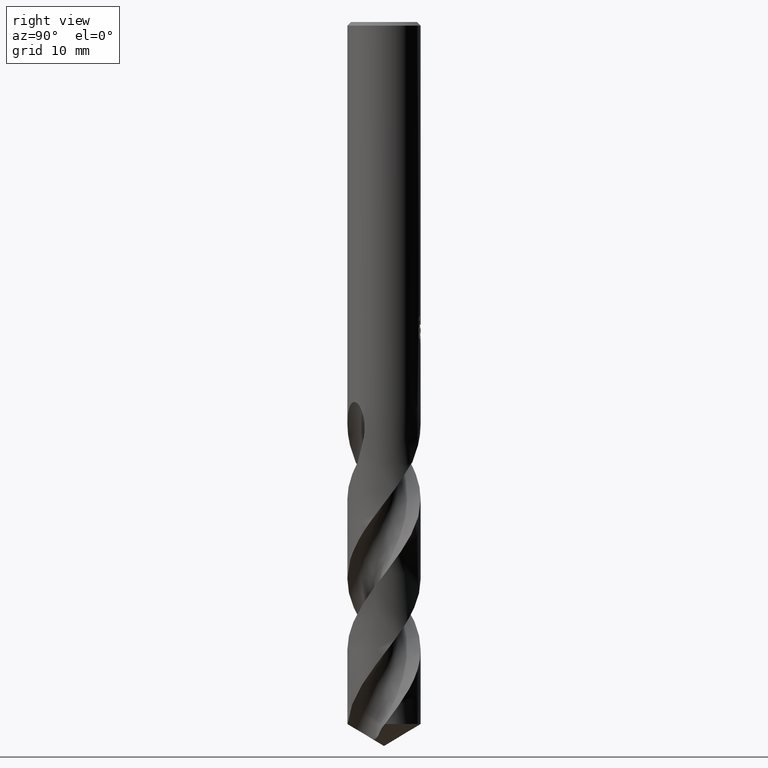
[diagram: clean part render]
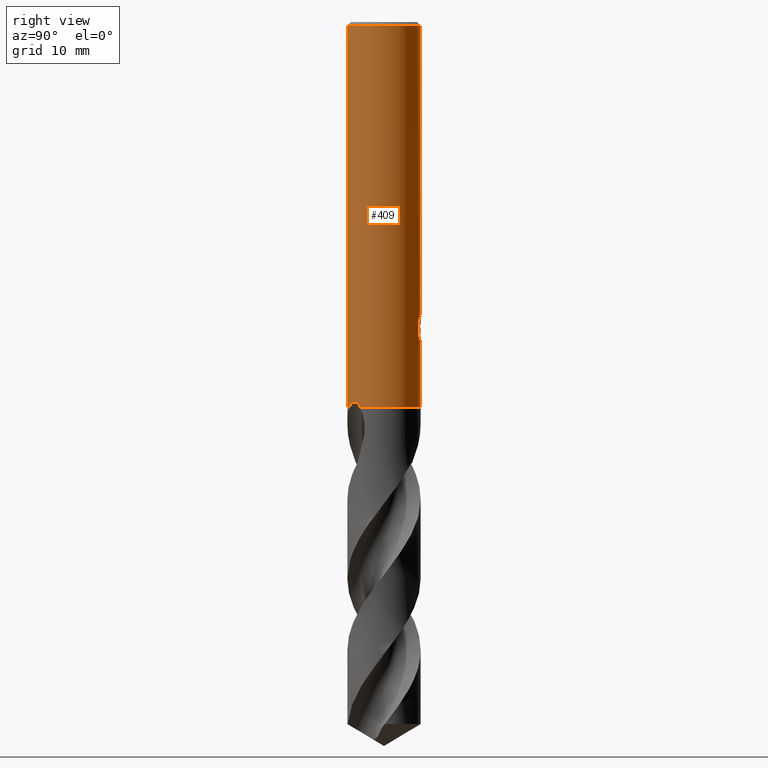
[diagram: same view with one face highlighted and labeled with its STEP entity id]
A machine part, right view. The second image highlights one B-rep face of the part: STEP entity #409.
In plain terms, the highlighted cylindrical surface (partial cylindrical patch) has radius 4 mm, axis along (-0, -0, 1).
Its self-contained STEP definition (entity closure, byte-faithful):
#251=EDGE_CURVE('',#639,#339,#718,.T.);
#271=EDGE_CURVE('',#605,#391,#740,.T.);
#277=VERTEX_POINT('',#746);
#283=EDGE_CURVE('',#391,#643,#752,.T.);
#303=VERTEX_POINT('',#775);
#307=VERTEX_POINT('',#779);
#327=VERTEX_POINT('',#802);
#339=VERTEX_POINT('',#815);
#391=VERTEX_POINT('',#873);
#401=EDGE_CURVE('',#605,#307,#885,.T.);
#409=ADVANCED_FACE('',(#894),#895,.T.);
#435=EDGE_CURVE('',#607,#639,#921,.T.);
#443=VERTEX_POINT('',#930);
#491=VERTEX_POINT('',#981);
#509=EDGE_CURVE('',#303,#491,#1001,.T.);
#525=EDGE_CURVE('',#677,#327,#1017,.T.);
#561=VERTEX_POINT('',#1057);
#569=EDGE_CURVE('',#303,#643,#1066,.T.);
#575=EDGE_CURVE('',#339,#491,#1073,.T.);
#601=EDGE_CURVE('',#443,#561,#1100,.T.);
#605=VERTEX_POINT('',#1104);
#607=VERTEX_POINT('',#1106);
#619=EDGE_CURVE('',#443,#277,#1119,.T.);
#627=EDGE_CURVE('',#561,#677,#1127,.T.);
#635=EDGE_CURVE('',#277,#307,#1135,.T.);
#639=VERTEX_POINT('',#1139);
#643=VERTEX_POINT('',#1143);
#653=EDGE_CURVE('',#327,#607,#1154,.T.);
#677=VERTEX_POINT('',#1181);
#718=B_SPLINE_CURVE_WITH_KNOTS('',3,(#1215,#1216,#1217,#1218,#1219,#1220,#1221,#1222,#1223,#1224),.UNSPECIFIED.,.F.,.F.,(4,2,2,2,4),(0.621618550720988,0.932427826081483,1.24323710144198,1.55341597198189,1.8635948425218),.UNSPECIFIED.);
#740=CIRCLE('',#1363,4.0);
#746=CARTESIAN_POINT('',(-4.89842541528951E-016,4.0,-42.0));
#752=LINE('',#1389,#1390);
#775=CARTESIAN_POINT('',(0.0,4.0,-0.399999999999999));
#779=CARTESIAN_POINT('',(3.03043874900923,-2.61083147455047,-42.0));
#802=CARTESIAN_POINT('',(0.873560781758956,3.90344611344549,-34.7587351791531));
#815=CARTESIAN_POINT('',(0.799431726384364,3.91929954390451,-32.000000276873));
#873=CARTESIAN_POINT('',(4.89842541528951E-016,-4.0,-42.0));
#885=B_SPLINE_CURVE_WITH_KNOTS('',3,(#2496,#2497,#2498,#2499,#2500,#2501,#2502,#2503,#2504,#2505,#2506,#2507),.UNSPECIFIED.,.F.,.F.,(4,2,2,2,2,4),(0.0,0.75650991242746,1.21579775110314,1.59314384378832,1.97510931117291,2.38467101162333),.UNSPECIFIED.);
#894=FACE_OUTER_BOUND('',#2531,.T.);
#895=CYLINDRICAL_SURFACE('',#2532,4.0);
#921=LINE('',#2603,#2604);
#930=CARTESIAN_POINT('',(-6.37761657961682E-016,4.0,-35.0310253601033));
#981=CARTESIAN_POINT('',(3.18191848027288E-016,4.0,-33.0232688117743));
#1001=LINE('',#2800,#2801);
#1017=LINE('',#2924,#2925);
#1057=CARTESIAN_POINT('',(0.29010312703583,3.98946615171554,-34.9998328990228));
#1066=CIRCLE('',#3443,4.0);
#1073=B_SPLINE_CURVE_WITH_KNOTS('',3,(#3452,#3453,#3454,#3455,#3456,#3457,#3458,#3459,#3460,#3461,#3462,#3463,#3464,#3465,#3466,#3467,#3468,#3469,#3470,#3471,#3472,#3473,#3474,#3475,#3476,#3477,#3478),.UNSPECIFIED.,.F.,.F.,(4,2,3,2,2,2,2,2,2,2,2,2,4),(-0.543018145553852,-0.271509072776926,0.0,0.271509072776925,0.543018145553851,0.815414280910788,1.08781041626772,1.35870467547365,1.62959893467958,1.90093601549038,2.17227309630118,2.44361017711198,2.71494725792277),.UNSPECIFIED.);
#1100=B_SPLINE_CURVE_WITH_KNOTS('',3,(#3843,#3844,#3845,#3846,#3847,#3848,#3849,#3850,#3851,#3852,#3853,#3854,#3855,#3856,#3857,#3858),.UNSPECIFIED.,.F.,.F.,(4,2,2,2,2,2,2,4),(5.59330412183837,6.21519943861119,6.52611580040833,6.83703216220547,7.14794852400261,7.45886488579975,7.76904377517711,8.07922266455448),.UNSPECIFIED.);
#1104=CARTESIAN_POINT('',(1.36364864754241,-3.76038061451973,-42.0));
#1106=CARTESIAN_POINT('',(1.33721006514658,3.76986329217263,-34.2901657003257));
#1119=LINE('',#3881,#3882);
#1127=ELLIPSE('',#3960,12.1919782934791,4.0);
#1135=CIRCLE('',#3971,4.0);
#1139=CARTESIAN_POINT('',(1.33721006514658,3.76986329217263,-32.5150484364821));
#1143=CARTESIAN_POINT('',(4.89842541528951E-016,-4.0,-0.399999999999999));
#1154=B_SPLINE_CURVE_WITH_KNOTS('',3,(#4614,#4615,#4616,#4617,#4618,#4619,#4620,#4621,#4622,#4623),.UNSPECIFIED.,.F.,.F.,(4,2,2,2,4),(8.07922159159579,8.38940045176896,8.69957931194213,9.01038857642138,9.32119784090063),.UNSPECIFIED.);
#1181=CARTESIAN_POINT('',(0.873560781758957,3.90344611344549,-33.3198931596091));
#1215=CARTESIAN_POINT('',(1.47492143493288,3.71814560779638,-32.7759604553564));
#1216=CARTESIAN_POINT('',(1.43317985453683,3.73470372211652,-32.6758249567768));
#1217=CARTESIAN_POINT('',(1.38139934199222,3.75442745234279,-32.5801212011595));
#1218=CARTESIAN_POINT('',(1.26216864159785,3.79617175011376,-32.4033868968692));
#1219=CARTESIAN_POINT('',(1.1947060468711,3.8181497487877,-32.3223546663791));
#1220=CARTESIAN_POINT('',(1.0513319169546,3.86008660392055,-32.1790629248092));
#1221=CARTESIAN_POINT('',(0.97036743340102,3.88157055479408,-32.1117010969221));
#1222=CARTESIAN_POINT('',(0.793686081906952,3.92151314302242,-31.9925943353462));
#1223=CARTESIAN_POINT('',(0.697967348067753,3.93993643158254,-31.9408403180509));
#1224=CARTESIAN_POINT('',(0.597825544213159,3.95507327601983,-31.8991318677171));
#1363=AXIS2_PLACEMENT_3D('',#4894,#4895,#4896);
#1389=CARTESIAN_POINT('',(4.89842541528951E-016,-4.0,-18.7));
#1390=VECTOR('',#4901,1.0);
#2496=CARTESIAN_POINT('',(1.36364864754241,-3.76038061451972,-42.0));
#2497=CARTESIAN_POINT('',(1.53803211788228,-3.69714292454639,-41.8291752534995));
#2498=CARTESIAN_POINT('',(1.7332313604225,-3.61236933305405,-41.669081449096));
#2499=CARTESIAN_POINT('',(2.05795505081282,-3.43285127620597,-41.5073760558736));
#2500=CARTESIAN_POINT('',(2.18355209242297,-3.35490586853563,-41.4680618832215));
#2501=CARTESIAN_POINT('',(2.41060746004576,-3.1944787921288,-41.4586462671471));
#2502=CARTESIAN_POINT('',(2.50696211418953,-3.11914909209717,-41.4777304185583));
#2503=CARTESIAN_POINT('',(2.68773587344647,-2.96485574910876,-41.5626572735304));
#2504=CARTESIAN_POINT('',(2.76761099238614,-2.88967709367295,-41.6269844954505));
#2505=CARTESIAN_POINT('',(2.91295605331752,-2.74336912817674,-41.7906182712461));
#2506=CARTESIAN_POINT('',(2.97649078817322,-2.67344983676231,-41.8915223921263));
#2507=CARTESIAN_POINT('',(3.03043874900923,-2.61083147455047,-42.0));
#2531=EDGE_LOOP('',(#5115,#5116,#5117,#5118,#5119,#5120,#5121,#5122,#5123,#5124,#5125,#5126,#5127,#5128));
#2532=AXIS2_PLACEMENT_3D('',#5129,#5130,#5131);
#2603=CARTESIAN_POINT('',(1.33721006514658,3.76986329217263,-33.4026070684039));
#2604=VECTOR('',#5137,1.0);
#2800=CARTESIAN_POINT('',(-4.89842541528951E-016,4.0,-18.7));
#2801=VECTOR('',#5210,1.0);
#2924=CARTESIAN_POINT('',(0.873560781758957,3.90344611344549,-34.0393141693811));
#2925=VECTOR('',#5213,1.0);
#3443=AXIS2_PLACEMENT_3D('',#5268,#5269,#5270);
#3452=CARTESIAN_POINT('',(0.665279195004376,3.9442874632428,-31.8137529884524));
#3453=CARTESIAN_POINT('',(0.72877088492158,3.9335783806135,-31.8773526603125));
#3454=CARTESIAN_POINT('',(0.783944488018488,3.92260552826083,-31.957920893425));
#3455=CARTESIAN_POINT('',(0.85726707399334,3.90723639918054,-32.134802544027));
#3456=CARTESIAN_POINT('',(0.875400981188567,3.90303383563787,-32.2311389883278));
#3457=CARTESIAN_POINT('',(0.875400981188567,3.90303383563787,-32.3216420125868));
#3458=CARTESIAN_POINT('',(0.875400981188567,3.90303383563787,-32.4121450368458));
#3459=CARTESIAN_POINT('',(0.85726707399334,3.90723639918054,-32.5084814811466));
#3460=CARTESIAN_POINT('',(0.783944488018488,3.92260552826083,-32.6853631317486));
#3461=CARTESIAN_POINT('',(0.728770884921581,3.9335783806135,-32.765931364861));
#3462=CARTESIAN_POINT('',(0.601580067811905,3.95503153411898,-32.8933384986505));
#3463=CARTESIAN_POINT('',(0.520902117238449,3.96693827151805,-32.9487071231089));
#3464=CARTESIAN_POINT('',(0.343752086871947,3.98619778335453,-33.0223037477669));
#3465=CARTESIAN_POINT('',(0.247255556938652,3.99338316413851,-33.0405166027747));
#3466=CARTESIAN_POINT('',(0.0662974670001866,4.00046977119903,-33.0405166027747));
#3467=CARTESIAN_POINT('',(-0.0299674229107105,4.00086780861984,-33.0224830783565));
#3468=CARTESIAN_POINT('',(-0.206991592502206,3.99562207288533,-32.9491870835923));
#3469=CARTESIAN_POINT('',(-0.287758268875904,3.99014940483369,-32.8939303320089));
#3470=CARTESIAN_POINT('',(-0.415384305359873,3.97889009382894,-32.7664425414649));
#3471=CARTESIAN_POINT('',(-0.47075383557047,3.9723749730993,-32.6856442592887));
#3472=CARTESIAN_POINT('',(-0.544239101864661,3.96297563900076,-32.5084730190186));
#3473=CARTESIAN_POINT('',(-0.562348199187247,3.96027328638705,-32.4120877061904));
#3474=CARTESIAN_POINT('',(-0.562348199187247,3.96027328638705,-32.2311963189832));
#3475=CARTESIAN_POINT('',(-0.544239101864661,3.96297563900076,-32.134811006155));
#3476=CARTESIAN_POINT('',(-0.47075383557047,3.9723749730993,-31.9576397658849));
#3477=CARTESIAN_POINT('',(-0.415384305359873,3.97889009382894,-31.8768414837086));
#3478=CARTESIAN_POINT('',(-0.35151917323021,3.98452434687649,-31.8130455309993));
#3843=CARTESIAN_POINT('',(-1.53169074080201,3.69512157777541,-34.0291469804961));
#3844=CARTESIAN_POINT('',(-1.44828662161398,3.72969396308271,-34.2292685117474));
#3845=CARTESIAN_POINT('',(-1.3235119204923,3.77766697431007,-34.4106519059977));
#3846=CARTESIAN_POINT('',(-1.10876972720289,3.84398770228913,-34.6255223555534));
#3847=CARTESIAN_POINT('',(-1.0278462850084,3.86675406900514,-34.6929304922165));
#3848=CARTESIAN_POINT('',(-0.851215741256178,3.9094356085587,-34.8121513963803));
#3849=CARTESIAN_POINT('',(-0.755506440008018,3.92931563110609,-34.8639734861066));
#3850=CARTESIAN_POINT('',(-0.55516132520436,3.96258844897707,-34.9475385932463));
#3851=CARTESIAN_POINT('',(-0.450345578096092,3.97598591776774,-34.9793474763458));
#3852=CARTESIAN_POINT('',(-0.238765831475676,3.99427916347003,-35.0212208804589));
#3853=CARTESIAN_POINT('',(-0.131998351317953,3.99916459194608,-35.0312723335086));
#3854=CARTESIAN_POINT('',(0.0750281946656649,4.00063255933723,-35.0312723335086));
#3855=CARTESIAN_POINT('',(0.181611397509719,3.99727906083033,-35.0212676362976));
#3856=CARTESIAN_POINT('',(0.392937729655654,3.98206259750675,-34.9795209106323));
#3857=CARTESIAN_POINT('',(0.497684032548136,3.97021008398904,-34.9477911393989));
#3858=CARTESIAN_POINT('',(0.597825841435797,3.9550732310934,-34.9060826866649));
#3881=CARTESIAN_POINT('',(-4.89842541528951E-016,4.0,-18.7));
#3882=VECTOR('',#5311,1.0);
#3960=AXIS2_PLACEMENT_3D('',#5315,#5316,#5317);
#3971=AXIS2_PLACEMENT_3D('',#5319,#5320,#5321);
#4614=CARTESIAN_POINT('',(0.597825566619951,3.95507327263295,-34.9060822529338));
#4615=CARTESIAN_POINT('',(0.697967367070361,3.93993642812991,-34.8643738039892));
#4616=CARTESIAN_POINT('',(0.793686097648072,3.92151313976681,-34.8126197884223));
#4617=CARTESIAN_POINT('',(0.970367443122638,3.8815705522933,-34.6935130308195));
#4618=CARTESIAN_POINT('',(1.05133192391794,3.86008660197544,-34.6261512051772));
#4619=CARTESIAN_POINT('',(1.19470604884202,3.81814974811935,-34.4828594684698));
#4620=CARTESIAN_POINT('',(1.26216864117972,3.79617175021539,-34.401827240791));
#4621=CARTESIAN_POINT('',(1.38139933735972,3.75442745400946,-34.2250929426288));
#4622=CARTESIAN_POINT('',(1.43317984807825,3.73470372457547,-34.1293891903286));
#4623=CARTESIAN_POINT('',(1.47492142700079,3.7181456109429,-34.0292536952238));
#4894=CARTESIAN_POINT('',(0.0,0.0,-42.0));
#4895=DIRECTION('',(0.0,0.0,-1.0));
#4896=DIRECTION('',(0.0,-1.0,0.0));
#4901=DIRECTION('',(-0.0,-0.0,1.0));
#5115=ORIENTED_EDGE('',*,*,#509,.F.);
#5116=ORIENTED_EDGE('',*,*,#569,.T.);
#5117=ORIENTED_EDGE('',*,*,#283,.F.);
#5118=ORIENTED_EDGE('',*,*,#271,.F.);
#5119=ORIENTED_EDGE('',*,*,#401,.T.);
#5120=ORIENTED_EDGE('',*,*,#635,.F.);
#5121=ORIENTED_EDGE('',*,*,#619,.F.);
#5122=ORIENTED_EDGE('',*,*,#601,.T.);
#5123=ORIENTED_EDGE('',*,*,#627,.T.);
#5124=ORIENTED_EDGE('',*,*,#525,.T.);
#5125=ORIENTED_EDGE('',*,*,#653,.T.);
#5126=ORIENTED_EDGE('',*,*,#435,.T.);
#5127=ORIENTED_EDGE('',*,*,#251,.T.);
#5128=ORIENTED_EDGE('',*,*,#575,.T.);
#5129=CARTESIAN_POINT('',(0.0,0.0,-18.7));
#5130=DIRECTION('',(-0.0,-0.0,1.0));
#5131=DIRECTION('',(0.0,1.0,0.0));
#5137=DIRECTION('',(-0.0,-0.0,1.0));
#5210=DIRECTION('',(0.0,0.0,-1.0));
#5213=DIRECTION('',(0.0,0.0,-1.0));
#5268=CARTESIAN_POINT('',(0.0,0.0,-0.399999999999999));
#5269=DIRECTION('',(0.0,0.0,-1.0));
#5270=DIRECTION('',(0.0,1.0,0.0));
#5311=DIRECTION('',(0.0,0.0,-1.0));
#5315=CARTESIAN_POINT('',(0.0,0.0,-35.8351219173269));
#5316=DIRECTION('',(0.944648353914092,0.0,-0.328084573619969));
#5317=DIRECTION('',(0.328084573619968,-0.0,0.944648353914092));
#5319=CARTESIAN_POINT('',(0.0,0.0,-42.0));
#5320=DIRECTION('',(0.0,0.0,-1.0));
#5321=DIRECTION('',(0.0,-1.0,0.0));